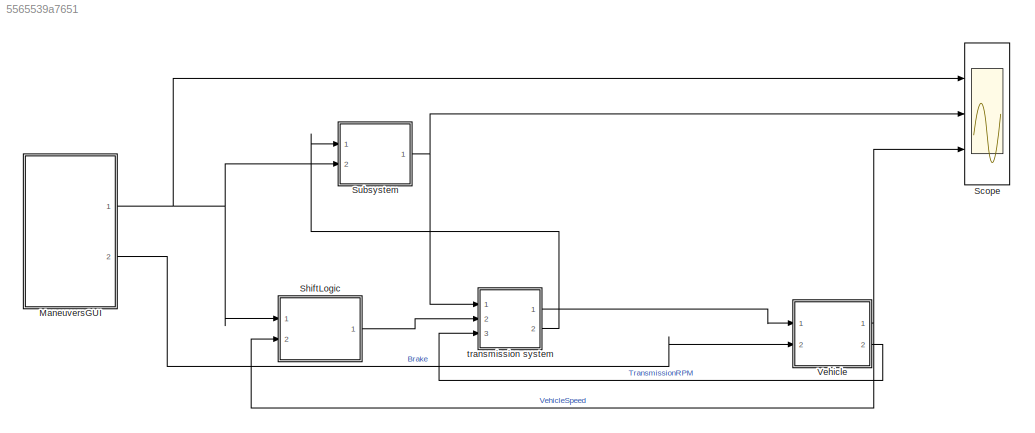
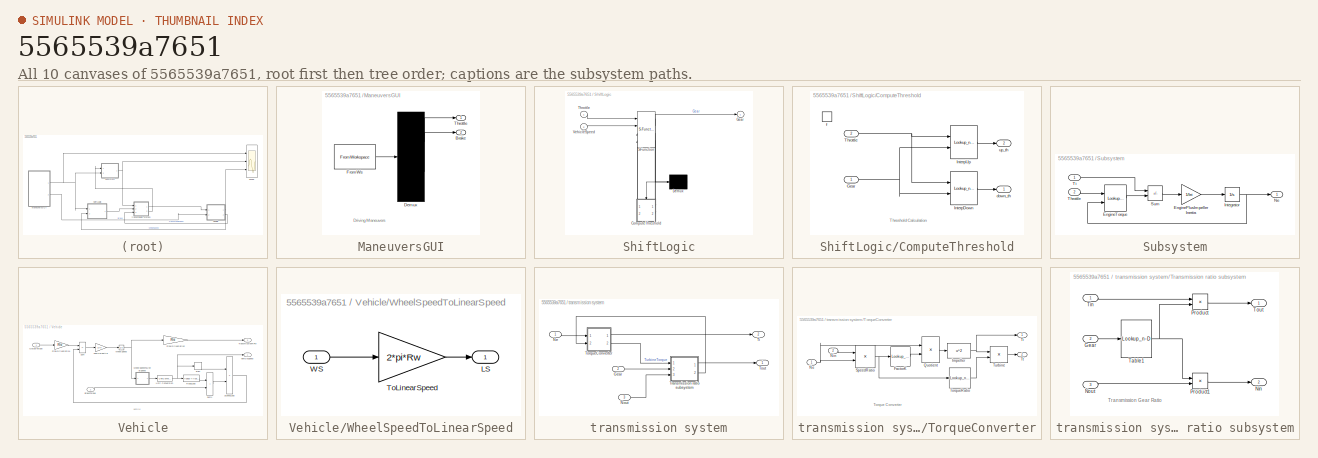
[diagram: thumbnail index - all 10 canvases of the model, root first then tree order]
MODEL slx_5565539a7651
KIND model
CONFIG AbsTol = auto
CONFIG EnableMultiTasking = off
CONFIG FixedStep = auto
CONFIG MaxStep = auto
CONFIG MinStep = auto
CONFIG RelTol = 1e-3
CONFIG SampleTimeConstraint = Unconstrained
CONFIG SolverName = VariableStepAuto
CONFIG StartTime = 0.0
CONFIG StopTime = 10.0
WORKSPACE source: mxarray member
WORKSPACE CONVERTER_DATA = [0 0.1 0.2 0.3 0.4 0.5 0.6 0.7 0.8 0.81 0.82 0.83 ... (63 elements, 21x3)]
WORKSPACE DOWN_TABLE = [0 0 0 0 0 0 5 5 5 5 30 30 ... (24 elements, 6x4)]
WORKSPACE DOWN_TH_BP = [0 5 40 50 90 100]
WORKSPACE EMAP = [-40 215 245 264 264 267 267 267 267 267 -44 117 ... (110 elements, 10x11)]
WORKSPACE Iei = 0.0219914882836
WORKSPACE NE_VEC = [800 1200 1600 2000 2400 2800 3200 3600 4000 4400 4800]
WORKSPACE Sig: Simulink.Signal (value not decoded)
WORKSPACE TH_VEC = [0 20 30 40 50 60 70 80 90 100]
WORKSPACE TWAIT = 2
WORKSPACE UP_TABLE = [10 10 15 23 40 40 30 30 30 41 70 70 ... (24 elements, 6x4)]
WORKSPACE UP_TH_BP = [0 25 35 50 90 100]
WORKSPACE VEHICLE_DATA = [3.23 40 0.02 1 12.0941478573 0]
BLOCK [SubSystem] ManeuversGUI
  ClipboardFcn = sigbuilder_block('clipboard');
  CloseFcn = sigbuilder_block('close');
  ContinueFcn = sigbuilder_block('continue')
  CopyFcn = sigbuilder_block('copy');
  DeleteFcn = sigbuilder_block('delete');
  LoadFcn = sigbuilder_block('load');
  MaskHideContents = on
  ModelCloseFcn = sigbuilder_block('modelClose');
  NameChangeFcn = sigbuilder_block('namechange');
  OpenFcn = sigbuilder_block('open',[80.8 328 413.6 257.6 ]);
  PauseFcn = sigbuilder_block('pause')
  Ports = [0, 2]
  PreSaveFcn = sigbuilder_block('preSave');
  RequestExecContextInheritance = off
  StartFcn = sigbuilder_block('start');
  StopFcn = sigbuilder_block('stop');
  Tag = STV Subsys
BLOCK [Outport] ManeuversGUI/Brake
  Port = 2
  Tag = STV Outport
  VectorParamsAs1DForOutWhenUnconnected = off
BLOCK [Demux] ManeuversGUI/Demux
  DisplayOption = none
  Outputs = 2
  Ports = [1, 2]
  Tag = STV Demux
BLOCK [FromWorkspace] ManeuversGUI/FromWs
  Tag = STV FromWs
  VariableName = tuvar
  ZeroCross = off
BLOCK [Outport] ManeuversGUI/Throttle
  Tag = STV Outport
  VectorParamsAs1DForOutWhenUnconnected = off
BLOCK [Scope] Scope
  Floating = off
  NumInputPorts = 3
  Ports = [3]
  ScopeSpecificationString = Simulink.scopes.TimeScopeBlockCfg('CurrentConfiguration', extmgr.ConfigurationSet(extmgr.Configuration('Core','General UI',true),extmgr.Configuration('Core','Source UI',true),extmgr.Configuration('Sources','WiredSimulink',true),extmgr.Configuration('Visuals','Time Domain',true,'SerializedDisplays',{struct('MinYLimReal','44.89933','MaxYLimReal','61.67785','YLabelReal','','MinYLimMag','44.89933','Ma...<+2707ch>
BLOCK [SubSystem] ShiftLogic
  ErrorFcn = Stateflow.Translate.translate
  PermitHierarchicalResolution = ExplicitOnly
  Ports = [2, 1]
  RequestExecContextInheritance = off
  SFBlockType = Chart
  TreatAsAtomicUnit = on
BLOCK [Demux] ShiftLogic/ Demux 
  Outputs = 1
  Ports = [1, 1]
BLOCK [S-Function] ShiftLogic/ SFunction 
  EnableBusSupport = on
  FunctionName = sf_sfun
  Parameters = TWAIT
  PortCounts = [4 4]
  Ports = [4, 4]
  SFcnIsStateOwnerBlock = off
  SFunctionDeploymentMode = off
  Tag = Stateflow S-Function 1
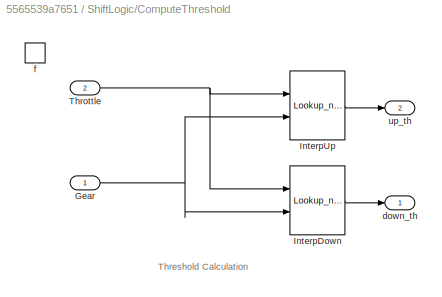
BLOCK [SubSystem] ShiftLogic/ComputeThreshold
  Ports = [2, 2, 0, 1]
  PreDeleteFcn = Stateflow.SLINSF.SimulinkMan.removePreDeleteFcn
  RequestExecContextInheritance = off
  UndoDeleteFcn = Stateflow.SLINSF.SimulinkMan.restorePreDeleteFcn
BLOCK [Inport] ShiftLogic/ComputeThreshold/Gear
BLOCK [Lookup_n-D] ShiftLogic/ComputeThreshold/InterpDown
  BreakpointsForDimension1 = DOWN_TH_BP
  BreakpointsForDimension2 = [1:4]
  InputPortMap = u0,u1
  InputSameDT = off
  LockScale = on
  OutDataTypeStr = double
  Ports = [2, 1]
  Table = DOWN_TABLE
BLOCK [Lookup_n-D] ShiftLogic/ComputeThreshold/InterpUp
  BreakpointsForDimension1 = UP_TH_BP
  BreakpointsForDimension2 = [1:4]
  InputPortMap = u0,u1
  InputSameDT = off
  LockScale = on
  OutDataTypeStr = double
  Ports = [2, 1]
  Table = UP_TABLE
BLOCK [Inport] ShiftLogic/ComputeThreshold/Throttle
  Port = 2
BLOCK [Outport] ShiftLogic/ComputeThreshold/down_th
  InitialOutput = 0
  VectorParamsAs1DForOutWhenUnconnected = off
BLOCK [TriggerPort] ShiftLogic/ComputeThreshold/f
  CopyFcn = Stateflow.SLINSF.SimulinkMan.removeBlockPreDeleteFcn
  Ports = []
  PreDeleteFcn = Stateflow.SLINSF.SimulinkMan.unsafePredeleteFcn
  StatesWhenEnabling = held
  TriggerType = function-call
  VariantControl = (inherit)
BLOCK [Outport] ShiftLogic/ComputeThreshold/up_th
  InitialOutput = 0
  Port = 2
  VectorParamsAs1DForOutWhenUnconnected = off
BLOCK [Outport] ShiftLogic/Gear
  VectorParamsAs1DForOutWhenUnconnected = off
BLOCK [Inport] ShiftLogic/Throttle
BLOCK [Inport] ShiftLogic/VehicleSpeed
  Port = 2
BLOCK [SubSystem] Subsystem
  Ports = [2, 1]
  RequestExecContextInheritance = off
BLOCK [Gain] Subsystem/EnginePlusImpellerInertia
  Gain = 1/Iei
  OutDataTypeStr = Inherit: Same as input
  ParamDataTypeStr = Inherit: Same as input
  SaturateOnIntegerOverflow = on
BLOCK [Lookup_n-D] Subsystem/EngineTorque
  BreakpointsForDimension1 = TH_VEC
  BreakpointsForDimension2 = NE_VEC
  InputPortMap = u0,u1
  Ports = [2, 1]
  Table = EMAP
BLOCK [Integrator] Subsystem/Integrator
  InitialCondition = 1000
  LimitOutput = on
  LowerSaturationLimit = 600
  Ports = [1, 1]
  UpperSaturationLimit = 6000
  ZeroCross = off
BLOCK [Outport] Subsystem/Ne
  Unit = rpm
  VectorParamsAs1DForOutWhenUnconnected = off
BLOCK [Sum] Subsystem/Sum
  IconShape = rectangular
  InputSameDT = on
  Inputs = -+
  OutDataTypeStr = Inherit: Same as first input
  Ports = [2, 1]
  SaturateOnIntegerOverflow = on
BLOCK [Inport] Subsystem/Throttle
  Port = 2
  Unit = %
BLOCK [Inport] Subsystem/Ti
  Unit = ft*lbf@torque
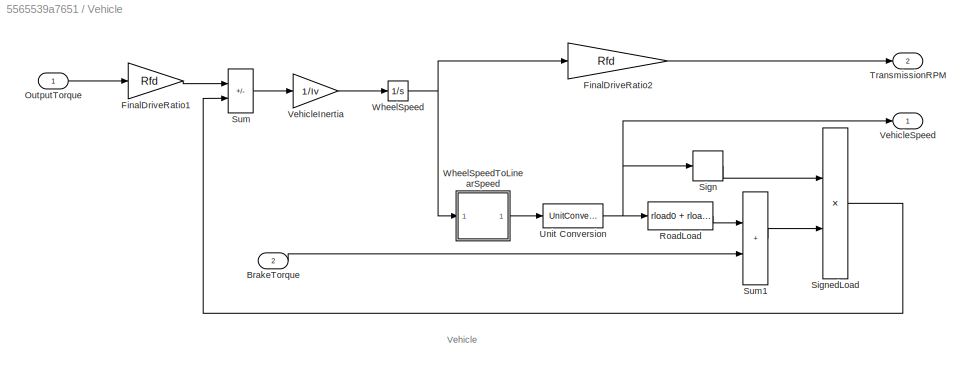
BLOCK [SubSystem] Vehicle
  Ports = [2, 2]
  RequestExecContextInheritance = off
  ShowPortLabels = none
BLOCK [Inport] Vehicle/BrakeTorque
  Port = 2
  Unit = ft*lbf@torque
BLOCK [Gain] Vehicle/FinalDriveRatio1
  Gain = Rfd
  OutDataTypeStr = Inherit: Same as input
  ParamDataTypeStr = Inherit: Same as input
  SaturateOnIntegerOverflow = on
BLOCK [Gain] Vehicle/FinalDriveRatio2
  Gain = Rfd
  OutDataTypeStr = Inherit: Same as input
  ParamDataTypeStr = Inherit: Same as input
  SaturateOnIntegerOverflow = on
BLOCK [Inport] Vehicle/OutputTorque
  Unit = ft*lbf@torque
BLOCK [Fcn] Vehicle/RoadLoad
  Expr = rload0 + rload2*u^2
BLOCK [Signum] Vehicle/Sign
BLOCK [Product] Vehicle/SignedLoad
  InputSameDT = on
  OutDataTypeStr = Inherit: Same as first input
  Ports = [2, 1]
  SaturateOnIntegerOverflow = on
BLOCK [Sum] Vehicle/Sum
  IconShape = rectangular
  InputSameDT = on
  Inputs = +-
  OutDataTypeStr = Inherit: Same as first input
  Ports = [2, 1]
  SaturateOnIntegerOverflow = on
BLOCK [Sum] Vehicle/Sum1
  IconShape = rectangular
  InputSameDT = on
  OutDataTypeStr = Inherit: Same as first input
  Ports = [2, 1]
  SaturateOnIntegerOverflow = on
BLOCK [Outport] Vehicle/TransmissionRPM
  Port = 2
  Unit = rpm
  VectorParamsAs1DForOutWhenUnconnected = off
BLOCK [UnitConversion] Vehicle/Unit Conversion
BLOCK [Gain] Vehicle/VehicleInertia
  Gain = 1/Iv
  OutDataTypeStr = Inherit: Same as input
  ParamDataTypeStr = Inherit: Same as input
  SaturateOnIntegerOverflow = on
BLOCK [Outport] Vehicle/VehicleSpeed
  Unit = mph
  VectorParamsAs1DForOutWhenUnconnected = off
BLOCK [Integrator] Vehicle/WheelSpeed
  InitialCondition = N20/Rfd
  Ports = [1, 1]
  ZeroCross = off
BLOCK [SubSystem] Vehicle/WheelSpeedToLinearSpeed
  Ports = [1, 1]
  RequestExecContextInheritance = off
BLOCK [Outport] Vehicle/WheelSpeedToLinearSpeed/LS
  Unit = ft/min
  VectorParamsAs1DForOutWhenUnconnected = off
BLOCK [Gain] Vehicle/WheelSpeedToLinearSpeed/ToLinearSpeed
  Gain = 2*pi*Rw
  OutDataTypeStr = Inherit: Same as input
  ParamDataTypeStr = Inherit: Same as input
  SaturateOnIntegerOverflow = on
BLOCK [Inport] Vehicle/WheelSpeedToLinearSpeed/WS
  Unit = rpm
BLOCK [SubSystem] transmission system
  Ports = [3, 2]
  RequestExecContextInheritance = off
BLOCK [Inport] transmission system/Gear
  Port = 2
BLOCK [Inport] transmission system/Ne
BLOCK [Inport] transmission system/Nout
  Port = 3
  Unit = rpm
BLOCK [Outport] transmission system/Ti
  Port = 2
BLOCK [SubSystem] transmission system/TorqueConverter
  Ports = [2, 2]
  RequestExecContextInheritance = off
  ShowPortLabels = none
BLOCK [Lookup_n-D] transmission system/TorqueConverter/FactorK
  BreakpointsForDimension1 = speedratio
  InputPortMap = u0
  NumberOfTableDimensions = 1
  Ports = [1, 1]
  SaturateOnIntegerOverflow = on
  Table = Kfactor
BLOCK [Fcn] transmission system/TorqueConverter/Impeller
  Expr = u^2
BLOCK [Inport] transmission system/TorqueConverter/Ne
BLOCK [Inport] transmission system/TorqueConverter/Nin
  Port = 2
BLOCK [Product] transmission system/TorqueConverter/Quotient
  InputSameDT = on
  Inputs = */
  OutDataTypeStr = Inherit: Same as first input
  Ports = [2, 1]
  SaturateOnIntegerOverflow = on
BLOCK [Product] transmission system/TorqueConverter/SpeedRatio
  InputSameDT = on
  Inputs = */
  OutDataTypeStr = Inherit: Same as first input
  Ports = [2, 1]
  SaturateOnIntegerOverflow = on
BLOCK [Outport] transmission system/TorqueConverter/Ti
  VectorParamsAs1DForOutWhenUnconnected = off
BLOCK [Lookup_n-D] transmission system/TorqueConverter/TorqueRatio
  BreakpointsForDimension1 = speedratio
  InputPortMap = u0
  NumberOfTableDimensions = 1
  Ports = [1, 1]
  SaturateOnIntegerOverflow = on
  Table = Torkratio
BLOCK [Outport] transmission system/TorqueConverter/Tt
  Port = 2
  VectorParamsAs1DForOutWhenUnconnected = off
BLOCK [Product] transmission system/TorqueConverter/Turbine
  InputSameDT = on
  OutDataTypeStr = Inherit: Same as first input
  Ports = [2, 1]
  SaturateOnIntegerOverflow = on
BLOCK [Outport] transmission system/Tout
  Unit = ft*lbf@torque
  VectorParamsAs1DForOutWhenUnconnected = off
BLOCK [SubSystem] transmission system/Transmission ratio subsystem
  Ports = [3, 2]
  RequestExecContextInheritance = off
BLOCK [Inport] transmission system/Transmission ratio subsystem/Gear
  Port = 2
  Unit = 1
BLOCK [Outport] transmission system/Transmission ratio subsystem/Nin
  Port = 2
  Unit = rpm
  VectorParamsAs1DForOutWhenUnconnected = off
BLOCK [Inport] transmission system/Transmission ratio subsystem/Nout
  Port = 3
  Unit = rpm
BLOCK [Product] transmission system/Transmission ratio subsystem/Product
  InputSameDT = on
  OutDataTypeStr = Inherit: Same as first input
  Ports = [2, 1]
  SaturateOnIntegerOverflow = on
BLOCK [Product] transmission system/Transmission ratio subsystem/Product1
  InputSameDT = on
  OutDataTypeStr = Inherit: Same as first input
  Ports = [2, 1]
  SaturateOnIntegerOverflow = on
BLOCK [Lookup_n-D] transmission system/Transmission ratio subsystem/Table1
  BreakpointsForDimension1 = [1 2 3 4]
  ExtrapMethod = Clip
  InputPortMap = u0
  LockScale = on
  NumberOfTableDimensions = 1
  OutDataTypeStr = double
  Ports = [1, 1]
  SaturateOnIntegerOverflow = on
  Table = [2.393 1.450 1.000 0.677]
BLOCK [Inport] transmission system/Transmission ratio subsystem/Tin
  Unit = ft*lbf@torque
BLOCK [Outport] transmission system/Transmission ratio subsystem/Tout
  Unit = ft*lbf@torque
  VectorParamsAs1DForOutWhenUnconnected = off
ANNOTATION ManeuversGUI: Driving Maneuvers
ANNOTATION ShiftLogic/ComputeThreshold: Threshold Calculation
ANNOTATION Vehicle: Vehicle
ANNOTATION transmission system/TorqueConverter: Torque Converter
ANNOTATION transmission system/Transmission ratio subsystem: Transmission Gear Ratio
LINE ManeuversGUI/Demux:1 -> ManeuversGUI/Throttle:1
LINE ManeuversGUI/Demux:2 -> ManeuversGUI/Brake:1
LINE ManeuversGUI/FromWs:1 -> ManeuversGUI/Demux:1
NET ManeuversGUI:1 -> Scope:1, ShiftLogic:1, Subsystem:2
LINE ManeuversGUI:2 -> Vehicle:2
LINE ShiftLogic:1 -> transmission system:2
LINE Subsystem/EnginePlusImpellerInertia:1 -> Subsystem/Integrator:1
LINE Subsystem/EngineTorque:1 -> Subsystem/Sum:2
NET Subsystem/Integrator:1 -> Subsystem/EngineTorque:2, Subsystem/Ne:1
LINE Subsystem/Sum:1 -> Subsystem/EnginePlusImpellerInertia:1
LINE Subsystem/Throttle:1 -> Subsystem/EngineTorque:1
LINE Subsystem/Ti:1 -> Subsystem/Sum:1
NET Subsystem:1 -> Scope:2, transmission system:1
LINE Vehicle/BrakeTorque:1 -> Vehicle/Sum1:2
LINE Vehicle/FinalDriveRatio1:1 -> Vehicle/Sum:1
LINE Vehicle/FinalDriveRatio2:1 -> Vehicle/TransmissionRPM:1
LINE Vehicle/OutputTorque:1 -> Vehicle/FinalDriveRatio1:1
LINE Vehicle/RoadLoad:1 -> Vehicle/Sum1:1
LINE Vehicle/Sign:1 -> Vehicle/SignedLoad:1
LINE Vehicle/SignedLoad:1 -> Vehicle/Sum:2
LINE Vehicle/Sum1:1 -> Vehicle/SignedLoad:2
LINE Vehicle/Sum:1 -> Vehicle/VehicleInertia:1
NET Vehicle/Unit Conversion:1 -> Vehicle/RoadLoad:1, Vehicle/Sign:1, Vehicle/VehicleSpeed:1
LINE Vehicle/VehicleInertia:1 -> Vehicle/WheelSpeed:1
NET Vehicle/WheelSpeed:1 -> Vehicle/FinalDriveRatio2:1, Vehicle/WheelSpeedToLinearSpeed:1
LINE Vehicle/WheelSpeedToLinearSpeed/ToLinearSpeed:1 -> Vehicle/WheelSpeedToLinearSpeed/LS:1
LINE Vehicle/WheelSpeedToLinearSpeed/WS:1 -> Vehicle/WheelSpeedToLinearSpeed/ToLinearSpeed:1
LINE Vehicle/WheelSpeedToLinearSpeed:1 -> Vehicle/Unit Conversion:1
NET Vehicle:1 -> Scope:3, ShiftLogic:2
LINE Vehicle:2 -> transmission system:3
LINE transmission system/Gear:1 -> transmission system/Transmission ratio subsystem:2
LINE transmission system/Ne:1 -> transmission system/TorqueConverter:1
LINE transmission system/Nout:1 -> transmission system/Transmission ratio subsystem:3
LINE transmission system/TorqueConverter/FactorK:1 -> transmission system/TorqueConverter/Quotient:2
NET transmission system/TorqueConverter/Impeller:1 -> transmission system/TorqueConverter/Ti:1, transmission system/TorqueConverter/Turbine:1
NET transmission system/TorqueConverter/Ne:1 -> transmission system/TorqueConverter/Quotient:1, transmission system/TorqueConverter/SpeedRatio:2
LINE transmission system/TorqueConverter/Nin:1 -> transmission system/TorqueConverter/SpeedRatio:1
LINE transmission system/TorqueConverter/Quotient:1 -> transmission system/TorqueConverter/Impeller:1
NET transmission system/TorqueConverter/SpeedRatio:1 -> transmission system/TorqueConverter/FactorK:1, transmission system/TorqueConverter/TorqueRatio:1
LINE transmission system/TorqueConverter/TorqueRatio:1 -> transmission system/TorqueConverter/Turbine:2
LINE transmission system/TorqueConverter/Turbine:1 -> transmission system/TorqueConverter/Tt:1
LINE transmission system/TorqueConverter:1 -> transmission system/Ti:1
LINE transmission system/TorqueConverter:2 -> transmission system/Transmission ratio subsystem:1
LINE transmission system/Transmission ratio subsystem/Gear:1 -> transmission system/Transmission ratio subsystem/Table1:1
LINE transmission system/Transmission ratio subsystem/Nout:1 -> transmission system/Transmission ratio subsystem/Product1:2
LINE transmission system/Transmission ratio subsystem/Product1:1 -> transmission system/Transmission ratio subsystem/Nin:1
LINE transmission system/Transmission ratio subsystem/Product:1 -> transmission system/Transmission ratio subsystem/Tout:1
NET transmission system/Transmission ratio subsystem/Table1:1 -> transmission system/Transmission ratio subsystem/Product1:1, transmission system/Transmission ratio subsystem/Product:2
LINE transmission system/Transmission ratio subsystem/Tin:1 -> transmission system/Transmission ratio subsystem/Product:1
LINE transmission system/Transmission ratio subsystem:1 -> transmission system/Tout:1
LINE transmission system/Transmission ratio subsystem:2 -> transmission system/TorqueConverter:2
LINE transmission system:1 -> Vehicle:1
LINE transmission system:2 -> Subsystem:1
note: NET lines group one-source signal fan-out (src -> all destinations, sorted); 1:1 wires keep LINE
CHART ShiftLogic states=10 transitions=14
  STATE_LABEL 'gear_state'
  STATE_LABEL 'first\nentry:\nGear = 1;'
  STATE_LABEL 'second\nentry:\nGear = 2;'
  STATE_LABEL 'third\nentry:\nGear = 3;'
  STATE_LABEL 'fourth\nentry:\nGear = 4;'
  STATE_LABEL 'UP'
  STATE_LABEL 'UP'
  STATE_LABEL 'UP'
  STATE_LABEL 'DOWN'
  STATE_LABEL 'DOWN'
  STATE_LABEL 'DOWN'
  STATE_LABEL 'first\nentry:\nGear = 1;'
  STATE_LABEL 'second\nentry:\nGear = 2;'
  STATE_LABEL 'third\nentry:\nGear = 3;'
  STATE_LABEL 'fourth\nentry:\nGear = 4;'
  STATE_LABEL 'selection_state\nduring:\n[down_th, up_th] = ComputeThreshold(Gear,Throttle);'
  STATE_LABEL 'steady_state'
  STATE_LABEL 'upshifting'
  STATE_LABEL 'downshifting'
  STATE_LABEL '[VehicleSpeed > up_th]'
  STATE_LABEL '[VehicleSpeed < down_th]'
  STATE_LABEL '[VehicleSpeed > down_th]'
  STATE_LABEL 'after(TWAIT,tick)\n[VehicleSpeed <= down_th]\n{gear_state.DOWN}'
  STATE_LABEL 'after(TWAIT,tick)\n[VehicleSpeed >= up_th]\n{gear_state.UP}'
  STATE_LABEL '[VehicleSpeed < up_th]'
  STATE_LABEL 'steady_state'
  STATE_LABEL 'upshifting'
  STATE_LABEL 'downshifting'
  STATE_LABEL '[down_th,up_th] = ComputeThreshold(Gear,Throttle)'
CHART  states=0 transitions=0
